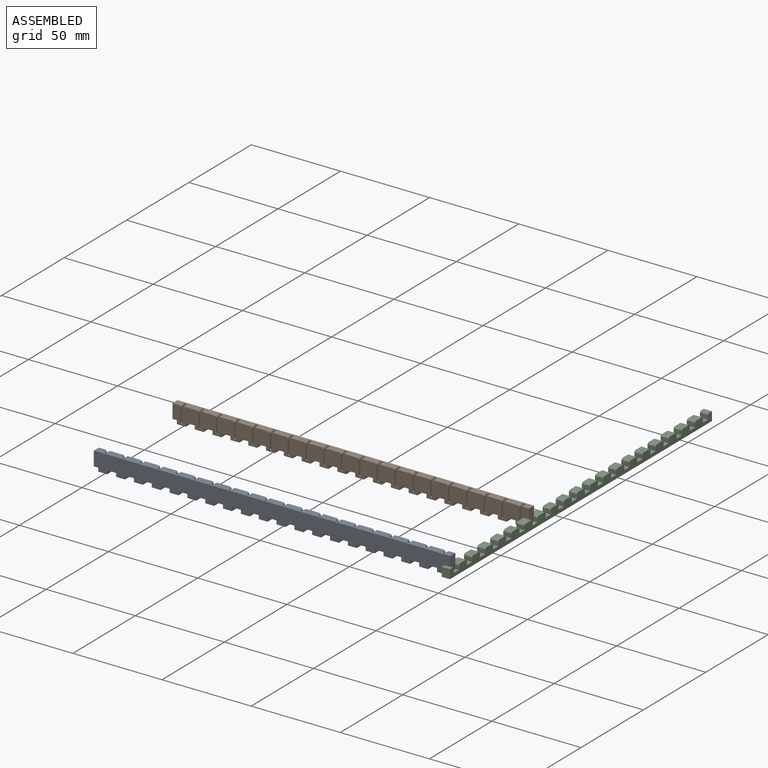
[diagram: assembled view]
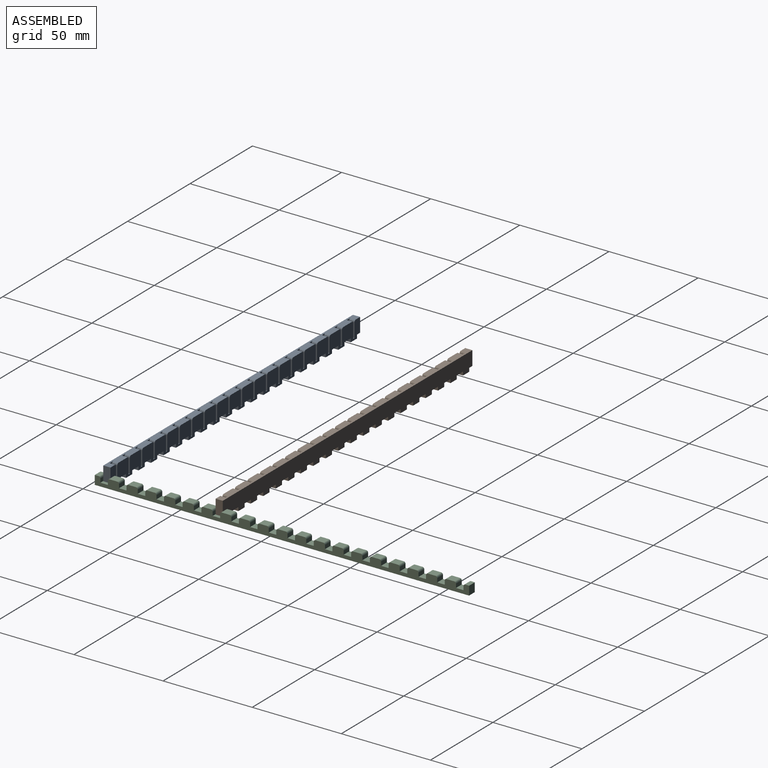
[diagram: assembled view, second angle]
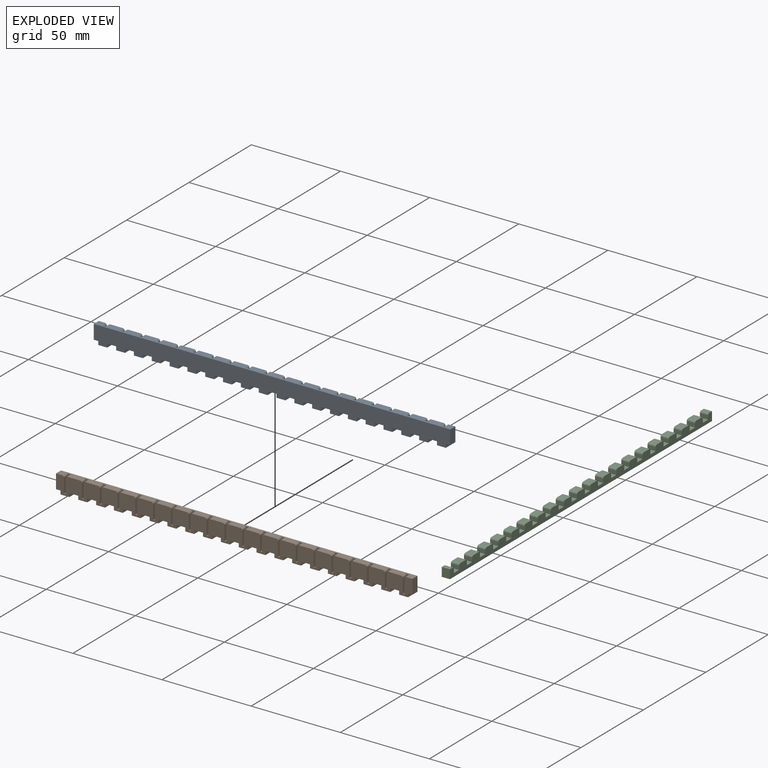
[diagram: exploded view]
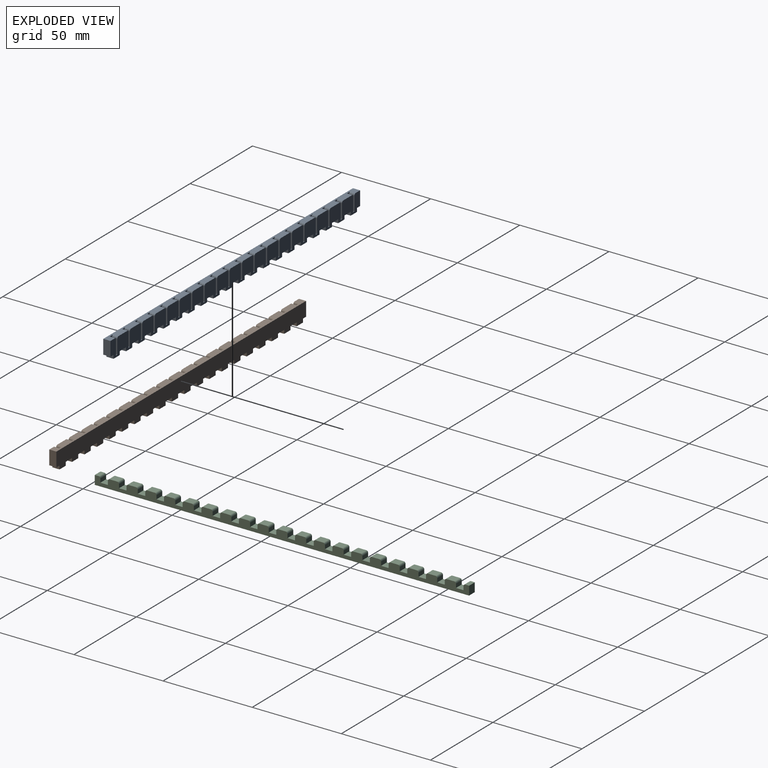
[diagram: exploded view, second angle]
ASSEMBLY  parts=3 mates=2
PART A: 206 faces, bbox 200x4x10 mm
  f0: plane 8x4mm, normal (1,0,0), area 32mm2, adj f6,f11,f12,f13
  f1: cylinder r=1mm len=3mm, axis (0,1,0), area 4.7mm2, adj f2,f6,f12,f14
  f2: plane 8x3mm, normal (-1,0,0), area 24mm2, adj f1,f3,f12,f14
  f3: plane 3x1mm, normal (0,0,1), area 3mm2, adj f2,f4,f12,f14
  f4: plane 8x3mm, normal (1,0,0), area 24mm2, adj f3,f5,f12,f14
  f5: cylinder r=1mm len=3mm, axis (0,1,0), area 4.7mm2, adj f4,f6,f12,f14
  f6: plane 200x4mm, normal (0,0,1), area 620mm2, adj f0,f1,f5,f12,f13,f14,f15,f19
  f7: plane 5x4mm, normal (0,0,-1), area 20mm2, adj f8,f12,f13,f23
  f8: plane 4x2mm, normal (-1,0,0), area 8mm2, adj f7,f9,f12,f13
  f9: plane 5x4mm, normal (0,0,-1), area 20mm2, adj f8,f10,f12,f13
  f10: plane 4x2mm, normal (1,0,0), area 8mm2, adj f9,f11,f12,f13
  f11: plane 4x2.5mm, normal (0,0,-1), area 10mm2, adj f0,f10,f12,f13
  f12: plane 200x10mm, normal (0,-1,0), area 1611.4mm2, adj f0,f1,f2,f3,f4,f5,f6,f7
  f13: plane 200x10mm, normal (0,1,0), area 1800mm2, adj f0,f6,f7,f8,f9,f10,f11,f20
  f14: plane 9x3mm, normal (0,-1,0), area 9.4mm2, adj f1,f2,f3,f4,f5,f6
  f15: cylinder r=1mm len=3mm, axis (0,1,0), area 4.7mm2, adj f6,f12,f16,f24
  f16: plane 8x3mm, normal (-1,0,0), area 24mm2, adj f12,f15,f17,f24
  f17: plane 3x1mm, normal (0,0,1), area 3mm2, adj f12,f16,f18,f24
  f18: plane 8x3mm, normal (1,0,0), area 24mm2, adj f12,f17,f19,f24
  f19: cylinder r=1mm len=3mm, axis (0,1,0), area 4.7mm2, adj f6,f12,f18,f24
  f20: plane 5x4mm, normal (0,0,-1), area 20mm2, adj f12,f13,f21,f33
  f21: plane 4x2mm, normal (-1,0,0), area 8mm2, adj f12,f13,f20,f22
  f22: plane 5x4mm, normal (0,0,-1), area 20mm2, adj f12,f13,f21,f23
  f23: plane 4x2mm, normal (1,0,0), area 8mm2, adj f7,f12,f13,f22
  f24: plane 9x3mm, normal (0,-1,0), area 9.4mm2, adj f6,f15,f16,f17,f18,f19
  f25: cylinder r=1mm len=3mm, axis (0,1,0), area 4.7mm2, adj f6,f12,f26,f34
  f26: plane 8x3mm, normal (-1,0,0), area 24mm2, adj f12,f25,f27,f34
  f27: plane 3x1mm, normal (0,0,1), area 3mm2, adj f12,f26,f28,f34
  f28: plane 8x3mm, normal (1,0,0), area 24mm2, adj f12,f27,f29,f34
  f29: cylinder r=1mm len=3mm, axis (0,1,0), area 4.7mm2, adj f6,f12,f28,f34
  f30: plane 5x4mm, normal (0,0,-1), area 20mm2, adj f12,f13,f31,f43
  f31: plane 4x2mm, normal (-1,0,0), area 8mm2, adj f12,f13,f30,f32
  f32: plane 5x4mm, normal (0,0,-1), area 20mm2, adj f12,f13,f31,f33
  f33: plane 4x2mm, normal (1,0,0), area 8mm2, adj f12,f13,f20,f32
  f34: plane 9x3mm, normal (0,-1,0), area 9.4mm2, adj f6,f25,f26,f27,f28,f29
  f35: cylinder r=1mm len=3mm, axis (0,1,0), area 4.7mm2, adj f6,f12,f36,f44
  f36: plane 8x3mm, normal (-1,0,0), area 24mm2, adj f12,f35,f37,f44
  f37: plane 3x1mm, normal (0,0,1), area 3mm2, adj f12,f36,f38,f44
  f38: plane 8x3mm, normal (1,0,0), area 24mm2, adj f12,f37,f39,f44
  f39: cylinder r=1mm len=3mm, axis (0,1,0), area 4.7mm2, adj f6,f12,f38,f44
  f40: plane 5x4mm, normal (0,0,-1), area 20mm2, adj f12,f13,f41,f53
  f41: plane 4x2mm, normal (-1,0,0), area 8mm2, adj f12,f13,f40,f42
  f42: plane 5x4mm, normal (0,0,-1), area 20mm2, adj f12,f13,f41,f43
  f43: plane 4x2mm, normal (1,0,0), area 8mm2, adj f12,f13,f30,f42
  f44: plane 9x3mm, normal (0,-1,0), area 9.4mm2, adj f6,f35,f36,f37,f38,f39
  f45: cylinder r=1mm len=3mm, axis (0,1,0), area 4.7mm2, adj f6,f12,f46,f54
  f46: plane 8x3mm, normal (-1,0,0), area 24mm2, adj f12,f45,f47,f54
  f47: plane 3x1mm, normal (0,0,1), area 3mm2, adj f12,f46,f48,f54
  f48: plane 8x3mm, normal (1,0,0), area 24mm2, adj f12,f47,f49,f54
  f49: cylinder r=1mm len=3mm, axis (0,1,0), area 4.7mm2, adj f6,f12,f48,f54
  f50: plane 5x4mm, normal (0,0,-1), area 20mm2, adj f12,f13,f51,f63
  f51: plane 4x2mm, normal (-1,0,0), area 8mm2, adj f12,f13,f50,f52
  f52: plane 5x4mm, normal (0,0,-1), area 20mm2, adj f12,f13,f51,f53
  f53: plane 4x2mm, normal (1,0,0), area 8mm2, adj f12,f13,f40,f52
  f54: plane 9x3mm, normal (0,-1,0), area 9.4mm2, adj f6,f45,f46,f47,f48,f49
  f55: cylinder r=1mm len=3mm, axis (0,1,0), area 4.7mm2, adj f6,f12,f56,f64
  f56: plane 8x3mm, normal (-1,0,0), area 24mm2, adj f12,f55,f57,f64
  f57: plane 3x1mm, normal (0,0,1), area 3mm2, adj f12,f56,f58,f64
  f58: plane 8x3mm, normal (1,0,0), area 24mm2, adj f12,f57,f59,f64
  f59: cylinder r=1mm len=3mm, axis (0,1,0), area 4.7mm2, adj f6,f12,f58,f64
  f60: plane 5x4mm, normal (0,0,-1), area 20mm2, adj f12,f13,f61,f73
  f61: plane 4x2mm, normal (-1,0,0), area 8mm2, adj f12,f13,f60,f62
  f62: plane 5x4mm, normal (0,0,-1), area 20mm2, adj f12,f13,f61,f63
  f63: plane 4x2mm, normal (1,0,0), area 8mm2, adj f12,f13,f50,f62
  f64: plane 9x3mm, normal (0,-1,0), area 9.4mm2, adj f6,f55,f56,f57,f58,f59
  f65: cylinder r=1mm len=3mm, axis (0,1,0), area 4.7mm2, adj f6,f12,f66,f74
  f66: plane 8x3mm, normal (-1,0,0), area 24mm2, adj f12,f65,f67,f74
  f67: plane 3x1mm, normal (0,0,1), area 3mm2, adj f12,f66,f68,f74
  f68: plane 8x3mm, normal (1,0,0), area 24mm2, adj f12,f67,f69,f74
  f69: cylinder r=1mm len=3mm, axis (0,1,0), area 4.7mm2, adj f6,f12,f68,f74
  f70: plane 5x4mm, normal (0,0,-1), area 20mm2, adj f12,f13,f71,f83
  f71: plane 4x2mm, normal (-1,0,0), area 8mm2, adj f12,f13,f70,f72
  f72: plane 5x4mm, normal (0,0,-1), area 20mm2, adj f12,f13,f71,f73
  f73: plane 4x2mm, normal (1,0,0), area 8mm2, adj f12,f13,f60,f72
  f74: plane 9x3mm, normal (0,-1,0), area 9.4mm2, adj f6,f65,f66,f67,f68,f69
  f75: cylinder r=1mm len=3mm, axis (0,1,0), area 4.7mm2, adj f6,f12,f76,f84
  f76: plane 8x3mm, normal (-1,0,0), area 24mm2, adj f12,f75,f77,f84
  f77: plane 3x1mm, normal (0,0,1), area 3mm2, adj f12,f76,f78,f84
  f78: plane 8x3mm, normal (1,0,0), area 24mm2, adj f12,f77,f79,f84
  f79: cylinder r=1mm len=3mm, axis (0,1,0), area 4.7mm2, adj f6,f12,f78,f84
  f80: plane 5x4mm, normal (0,0,-1), area 20mm2, adj f12,f13,f81,f93
  f81: plane 4x2mm, normal (-1,0,0), area 8mm2, adj f12,f13,f80,f82
  f82: plane 5x4mm, normal (0,0,-1), area 20mm2, adj f12,f13,f81,f83
  f83: plane 4x2mm, normal (1,0,0), area 8mm2, adj f12,f13,f70,f82
  f84: plane 9x3mm, normal (0,-1,0), area 9.4mm2, adj f6,f75,f76,f77,f78,f79
  f85: cylinder r=1mm len=3mm, axis (0,1,0), area 4.7mm2, adj f6,f12,f86,f94
  f86: plane 8x3mm, normal (-1,0,0), area 24mm2, adj f12,f85,f87,f94
  f87: plane 3x1mm, normal (0,0,1), area 3mm2, adj f12,f86,f88,f94
  f88: plane 8x3mm, normal (1,0,0), area 24mm2, adj f12,f87,f89,f94
  f89: cylinder r=1mm len=3mm, axis (0,1,0), area 4.7mm2, adj f6,f12,f88,f94
  f90: plane 5x4mm, normal (0,0,-1), area 20mm2, adj f12,f13,f91,f103
  f91: plane 4x2mm, normal (-1,0,0), area 8mm2, adj f12,f13,f90,f92
  f92: plane 5x4mm, normal (0,0,-1), area 20mm2, adj f12,f13,f91,f93
  f93: plane 4x2mm, normal (1,0,0), area 8mm2, adj f12,f13,f80,f92
  f94: plane 9x3mm, normal (0,-1,0), area 9.4mm2, adj f6,f85,f86,f87,f88,f89
  f95: cylinder r=1mm len=3mm, axis (0,1,0), area 4.7mm2, adj f6,f12,f96,f104
  f96: plane 8x3mm, normal (-1,0,0), area 24mm2, adj f12,f95,f97,f104
  f97: plane 3x1mm, normal (0,0,1), area 3mm2, adj f12,f96,f98,f104
  f98: plane 8x3mm, normal (1,0,0), area 24mm2, adj f12,f97,f99,f104
  f99: cylinder r=1mm len=3mm, axis (0,1,0), area 4.7mm2, adj f6,f12,f98,f104
  f100: plane 5x4mm, normal (0,0,-1), area 20mm2, adj f12,f13,f101,f113
  f101: plane 4x2mm, normal (-1,0,0), area 8mm2, adj f12,f13,f100,f102
  f102: plane 5x4mm, normal (0,0,-1), area 20mm2, adj f12,f13,f101,f103
  f103: plane 4x2mm, normal (1,0,0), area 8mm2, adj f12,f13,f90,f102
  f104: plane 9x3mm, normal (0,-1,0), area 9.4mm2, adj f6,f95,f96,f97,f98,f99
  f105: cylinder r=1mm len=3mm, axis (0,1,0), area 4.7mm2, adj f6,f12,f106,f114
  f106: plane 8x3mm, normal (-1,0,0), area 24mm2, adj f12,f105,f107,f114
  f107: plane 3x1mm, normal (0,0,1), area 3mm2, adj f12,f106,f108,f114
  f108: plane 8x3mm, normal (1,0,0), area 24mm2, adj f12,f107,f109,f114
  f109: cylinder r=1mm len=3mm, axis (0,1,0), area 4.7mm2, adj f6,f12,f108,f114
  f110: plane 5x4mm, normal (0,0,-1), area 20mm2, adj f12,f13,f111,f123
  f111: plane 4x2mm, normal (-1,0,0), area 8mm2, adj f12,f13,f110,f112
  f112: plane 5x4mm, normal (0,0,-1), area 20mm2, adj f12,f13,f111,f113
  f113: plane 4x2mm, normal (1,0,0), area 8mm2, adj f12,f13,f100,f112
  f114: plane 9x3mm, normal (0,-1,0), area 9.4mm2, adj f6,f105,f106,f107,f108,f109
  f115: cylinder r=1mm len=3mm, axis (0,1,0), area 4.7mm2, adj f6,f12,f116,f124
  f116: plane 8x3mm, normal (-1,0,0), area 24mm2, adj f12,f115,f117,f124
  f117: plane 3x1mm, normal (0,0,1), area 3mm2, adj f12,f116,f118,f124
  f118: plane 8x3mm, normal (1,0,0), area 24mm2, adj f12,f117,f119,f124
  f119: cylinder r=1mm len=3mm, axis (0,1,0), area 4.7mm2, adj f6,f12,f118,f124
  f120: plane 5x4mm, normal (0,0,-1), area 20mm2, adj f12,f13,f121,f133
  f121: plane 4x2mm, normal (-1,0,0), area 8mm2, adj f12,f13,f120,f122
  f122: plane 5x4mm, normal (0,0,-1), area 20mm2, adj f12,f13,f121,f123
  f123: plane 4x2mm, normal (1,0,0), area 8mm2, adj f12,f13,f110,f122
  f124: plane 9x3mm, normal (0,-1,0), area 9.4mm2, adj f6,f115,f116,f117,f118,f119
  f125: cylinder r=1mm len=3mm, axis (0,1,0), area 4.7mm2, adj f6,f12,f126,f134
  f126: plane 8x3mm, normal (-1,0,0), area 24mm2, adj f12,f125,f127,f134
  f127: plane 3x1mm, normal (0,0,1), area 3mm2, adj f12,f126,f128,f134
  f128: plane 8x3mm, normal (1,0,0), area 24mm2, adj f12,f127,f129,f134
  f129: cylinder r=1mm len=3mm, axis (0,1,0), area 4.7mm2, adj f6,f12,f128,f134
  f130: plane 5x4mm, normal (0,0,-1), area 20mm2, adj f12,f13,f131,f143
  f131: plane 4x2mm, normal (-1,0,0), area 8mm2, adj f12,f13,f130,f132
  f132: plane 5x4mm, normal (0,0,-1), area 20mm2, adj f12,f13,f131,f133
  f133: plane 4x2mm, normal (1,0,0), area 8mm2, adj f12,f13,f120,f132
  f134: plane 9x3mm, normal (0,-1,0), area 9.4mm2, adj f6,f125,f126,f127,f128,f129
  f135: cylinder r=1mm len=3mm, axis (0,1,0), area 4.7mm2, adj f6,f12,f136,f144
  f136: plane 8x3mm, normal (-1,0,0), area 24mm2, adj f12,f135,f137,f144
  f137: plane 3x1mm, normal (0,0,1), area 3mm2, adj f12,f136,f138,f144
  f138: plane 8x3mm, normal (1,0,0), area 24mm2, adj f12,f137,f139,f144
  f139: cylinder r=1mm len=3mm, axis (0,1,0), area 4.7mm2, adj f6,f12,f138,f144
  f140: plane 5x4mm, normal (0,0,-1), area 20mm2, adj f12,f13,f141,f153
  f141: plane 4x2mm, normal (-1,0,0), area 8mm2, adj f12,f13,f140,f142
  f142: plane 5x4mm, normal (0,0,-1), area 20mm2, adj f12,f13,f141,f143
  f143: plane 4x2mm, normal (1,0,0), area 8mm2, adj f12,f13,f130,f142
  f144: plane 9x3mm, normal (0,-1,0), area 9.4mm2, adj f6,f135,f136,f137,f138,f139
  f145: cylinder r=1mm len=3mm, axis (0,1,0), area 4.7mm2, adj f6,f12,f146,f154
  f146: plane 8x3mm, normal (-1,0,0), area 24mm2, adj f12,f145,f147,f154
  f147: plane 3x1mm, normal (0,0,1), area 3mm2, adj f12,f146,f148,f154
  f148: plane 8x3mm, normal (1,0,0), area 24mm2, adj f12,f147,f149,f154
  f149: cylinder r=1mm len=3mm, axis (0,1,0), area 4.7mm2, adj f6,f12,f148,f154
  f150: plane 5x4mm, normal (0,0,-1), area 20mm2, adj f12,f13,f151,f163
  f151: plane 4x2mm, normal (-1,0,0), area 8mm2, adj f12,f13,f150,f152
  f152: plane 5x4mm, normal (0,0,-1), area 20mm2, adj f12,f13,f151,f153
  f153: plane 4x2mm, normal (1,0,0), area 8mm2, adj f12,f13,f140,f152
  f154: plane 9x3mm, normal (0,-1,0), area 9.4mm2, adj f6,f145,f146,f147,f148,f149
  f155: cylinder r=1mm len=3mm, axis (0,1,0), area 4.7mm2, adj f6,f12,f156,f164
  f156: plane 8x3mm, normal (-1,0,0), area 24mm2, adj f12,f155,f157,f164
  f157: plane 3x1mm, normal (0,0,1), area 3mm2, adj f12,f156,f158,f164
  f158: plane 8x3mm, normal (1,0,0), area 24mm2, adj f12,f157,f159,f164
  f159: cylinder r=1mm len=3mm, axis (0,1,0), area 4.7mm2, adj f6,f12,f158,f164
  f160: plane 5x4mm, normal (0,0,-1), area 20mm2, adj f12,f13,f161,f173
  f161: plane 4x2mm, normal (-1,0,0), area 8mm2, adj f12,f13,f160,f162
  f162: plane 5x4mm, normal (0,0,-1), area 20mm2, adj f12,f13,f161,f163
  f163: plane 4x2mm, normal (1,0,0), area 8mm2, adj f12,f13,f150,f162
  f164: plane 9x3mm, normal (0,-1,0), area 9.4mm2, adj f6,f155,f156,f157,f158,f159
  f165: cylinder r=1mm len=3mm, axis (0,1,0), area 4.7mm2, adj f6,f12,f166,f174
  f166: plane 8x3mm, normal (-1,0,0), area 24mm2, adj f12,f165,f167,f174
  f167: plane 3x1mm, normal (0,0,1), area 3mm2, adj f12,f166,f168,f174
  f168: plane 8x3mm, normal (1,0,0), area 24mm2, adj f12,f167,f169,f174
  f169: cylinder r=1mm len=3mm, axis (0,1,0), area 4.7mm2, adj f6,f12,f168,f174
  f170: plane 5x4mm, normal (0,0,-1), area 20mm2, adj f12,f13,f171,f183
  f171: plane 4x2mm, normal (-1,0,0), area 8mm2, adj f12,f13,f170,f172
  f172: plane 5x4mm, normal (0,0,-1), area 20mm2, adj f12,f13,f171,f173
  f173: plane 4x2mm, normal (1,0,0), area 8mm2, adj f12,f13,f160,f172
  f174: plane 9x3mm, normal (0,-1,0), area 9.4mm2, adj f6,f165,f166,f167,f168,f169
  f175: cylinder r=1mm len=3mm, axis (0,1,0), area 4.7mm2, adj f6,f12,f176,f184
  f176: plane 8x3mm, normal (-1,0,0), area 24mm2, adj f12,f175,f177,f184
  f177: plane 3x1mm, normal (0,0,1), area 3mm2, adj f12,f176,f178,f184
  f178: plane 8x3mm, normal (1,0,0), area 24mm2, adj f12,f177,f179,f184
  f179: cylinder r=1mm len=3mm, axis (0,1,0), area 4.7mm2, adj f6,f12,f178,f184
  f180: plane 5x4mm, normal (0,0,-1), area 20mm2, adj f12,f13,f181,f193
  f181: plane 4x2mm, normal (-1,0,0), area 8mm2, adj f12,f13,f180,f182
  f182: plane 5x4mm, normal (0,0,-1), area 20mm2, adj f12,f13,f181,f183
  f183: plane 4x2mm, normal (1,0,0), area 8mm2, adj f12,f13,f170,f182
  f184: plane 9x3mm, normal (0,-1,0), area 9.4mm2, adj f6,f175,f176,f177,f178,f179
  f185: cylinder r=1mm len=3mm, axis (0,1,0), area 4.7mm2, adj f6,f12,f186,f194
  f186: plane 8x3mm, normal (-1,0,0), area 24mm2, adj f12,f185,f187,f194
  f187: plane 3x1mm, normal (0,0,1), area 3mm2, adj f12,f186,f188,f194
  f188: plane 8x3mm, normal (1,0,0), area 24mm2, adj f12,f187,f189,f194
  f189: cylinder r=1mm len=3mm, axis (0,1,0), area 4.7mm2, adj f6,f12,f188,f194
  f190: plane 5x4mm, normal (0,0,-1), area 20mm2, adj f12,f13,f191,f204
  f191: plane 4x2mm, normal (-1,0,0), area 8mm2, adj f12,f13,f190,f192
  f192: plane 5x4mm, normal (0,0,-1), area 20mm2, adj f12,f13,f191,f193
  f193: plane 4x2mm, normal (1,0,0), area 8mm2, adj f12,f13,f180,f192
  f194: plane 9x3mm, normal (0,-1,0), area 9.4mm2, adj f6,f185,f186,f187,f188,f189
  f195: cylinder r=1mm len=3mm, axis (0,1,0), area 4.7mm2, adj f6,f12,f196,f205
  f196: plane 8x3mm, normal (-1,0,0), area 24mm2, adj f12,f195,f197,f205
  f197: plane 3x1mm, normal (0,0,1), area 3mm2, adj f12,f196,f198,f205
  f198: plane 8x3mm, normal (1,0,0), area 24mm2, adj f12,f197,f199,f205
  f199: cylinder r=1mm len=3mm, axis (0,1,0), area 4.7mm2, adj f6,f12,f198,f205
  f200: plane 8x4mm, normal (-1,0,0), area 32mm2, adj f6,f12,f13,f201
  f201: plane 4x2.5mm, normal (0,0,-1), area 10mm2, adj f12,f13,f200,f202
  f202: plane 4x2mm, normal (-1,0,0), area 8mm2, adj f12,f13,f201,f203
  f203: plane 5x4mm, normal (0,0,-1), area 20mm2, adj f12,f13,f202,f204
  f204: plane 4x2mm, normal (1,0,0), area 8mm2, adj f12,f13,f190,f203
  f205: plane 9x3mm, normal (0,-1,0), area 9.4mm2, adj f6,f195,f196,f197,f198,f199
PART B: same geometry as A
PART C: 126 faces, bbox 4.6x210x5 mm
  f0: plane 4.6x2.15mm, normal (0,0,1), area 9.9mm2, adj f1,f8,f9,f10
  f1: plane 5x4.6mm, normal (0,-1,0), area 23mm2, adj f0,f2,f9,f10
  f2: plane 210x4.6mm, normal (0,0,-1), area 966mm2, adj f1,f9,f10,f119
  f3: plane 4.6x4.3mm, normal (0,0,1), area 19.8mm2, adj f4,f9,f10,f16
  f4: cylinder r=1mm len=4.6mm, axis (-1,0,0), area 7.2mm2, adj f3,f5,f9,f10
  f5: plane 4.6x2.1mm, normal (0,-1,0), area 9.7mm2, adj f4,f6,f9,f10
  f6: plane 4.6x4.2mm, normal (0,0,1), area 19.3mm2, adj f5,f7,f9,f10
  f7: plane 4.6x2.1mm, normal (0,1,0), area 9.7mm2, adj f6,f8,f9,f10
  f8: cylinder r=1mm len=4.6mm, axis (-1,0,0), area 7.2mm2, adj f0,f7,f9,f10
  f9: plane 210x5mm, normal (1,0,0), area 781mm2, adj f0,f1,f2,f3,f4,f5,f6,f7
  f10: plane 210x5mm, normal (-1,0,0), area 781mm2, adj f0,f1,f2,f3,f4,f5,f6,f7
  f11: plane 4.6x4.3mm, normal (0,0,1), area 19.8mm2, adj f9,f10,f12,f22
  f12: cylinder r=1mm len=4.6mm, axis (-1,0,0), area 7.2mm2, adj f9,f10,f11,f13
  f13: plane 4.6x2.1mm, normal (0,-1,0), area 9.7mm2, adj f9,f10,f12,f14
  f14: plane 4.6x4.2mm, normal (0,0,1), area 19.3mm2, adj f9,f10,f13,f15
  f15: plane 4.6x2.1mm, normal (0,1,0), area 9.7mm2, adj f9,f10,f14,f16
  f16: cylinder r=1mm len=4.6mm, axis (-1,0,0), area 7.2mm2, adj f3,f9,f10,f15
  f17: plane 4.6x4.3mm, normal (0,0,1), area 19.8mm2, adj f9,f10,f18,f28
  f18: cylinder r=1mm len=4.6mm, axis (-1,0,0), area 7.2mm2, adj f9,f10,f17,f19
  f19: plane 4.6x2.1mm, normal (0,-1,0), area 9.7mm2, adj f9,f10,f18,f20
  f20: plane 4.6x4.2mm, normal (0,0,1), area 19.3mm2, adj f9,f10,f19,f21
  f21: plane 4.6x2.1mm, normal (0,1,0), area 9.7mm2, adj f9,f10,f20,f22
  f22: cylinder r=1mm len=4.6mm, axis (-1,0,0), area 7.2mm2, adj f9,f10,f11,f21
  f23: plane 4.6x4.3mm, normal (0,0,1), area 19.8mm2, adj f9,f10,f24,f34
  f24: cylinder r=1mm len=4.6mm, axis (-1,0,0), area 7.2mm2, adj f9,f10,f23,f25
  f25: plane 4.6x2.1mm, normal (0,-1,0), area 9.7mm2, adj f9,f10,f24,f26
  f26: plane 4.6x4.2mm, normal (0,0,1), area 19.3mm2, adj f9,f10,f25,f27
  f27: plane 4.6x2.1mm, normal (0,1,0), area 9.7mm2, adj f9,f10,f26,f28
  f28: cylinder r=1mm len=4.6mm, axis (-1,0,0), area 7.2mm2, adj f9,f10,f17,f27
  f29: plane 4.6x4.3mm, normal (0,0,1), area 19.8mm2, adj f9,f10,f30,f40
  f30: cylinder r=1mm len=4.6mm, axis (-1,0,0), area 7.2mm2, adj f9,f10,f29,f31
  f31: plane 4.6x2.1mm, normal (0,-1,0), area 9.7mm2, adj f9,f10,f30,f32
  f32: plane 4.6x4.2mm, normal (0,0,1), area 19.3mm2, adj f9,f10,f31,f33
  f33: plane 4.6x2.1mm, normal (0,1,0), area 9.7mm2, adj f9,f10,f32,f34
  f34: cylinder r=1mm len=4.6mm, axis (-1,0,0), area 7.2mm2, adj f9,f10,f23,f33
  f35: plane 4.6x4.3mm, normal (0,0,1), area 19.8mm2, adj f9,f10,f36,f46
  f36: cylinder r=1mm len=4.6mm, axis (-1,0,0), area 7.2mm2, adj f9,f10,f35,f37
  f37: plane 4.6x2.1mm, normal (0,-1,0), area 9.7mm2, adj f9,f10,f36,f38
  f38: plane 4.6x4.2mm, normal (0,0,1), area 19.3mm2, adj f9,f10,f37,f39
  f39: plane 4.6x2.1mm, normal (0,1,0), area 9.7mm2, adj f9,f10,f38,f40
  f40: cylinder r=1mm len=4.6mm, axis (-1,0,0), area 7.2mm2, adj f9,f10,f29,f39
  f41: plane 4.6x4.3mm, normal (0,0,1), area 19.8mm2, adj f9,f10,f42,f52
  f42: cylinder r=1mm len=4.6mm, axis (-1,0,0), area 7.2mm2, adj f9,f10,f41,f43
  f43: plane 4.6x2.1mm, normal (0,-1,0), area 9.7mm2, adj f9,f10,f42,f44
  f44: plane 4.6x4.2mm, normal (0,0,1), area 19.3mm2, adj f9,f10,f43,f45
  f45: plane 4.6x2.1mm, normal (0,1,0), area 9.7mm2, adj f9,f10,f44,f46
  f46: cylinder r=1mm len=4.6mm, axis (-1,0,0), area 7.2mm2, adj f9,f10,f35,f45
  f47: plane 4.6x4.3mm, normal (0,0,1), area 19.8mm2, adj f9,f10,f48,f58
  f48: cylinder r=1mm len=4.6mm, axis (-1,0,0), area 7.2mm2, adj f9,f10,f47,f49
  f49: plane 4.6x2.1mm, normal (0,-1,0), area 9.7mm2, adj f9,f10,f48,f50
  f50: plane 4.6x4.2mm, normal (0,0,1), area 19.3mm2, adj f9,f10,f49,f51
  f51: plane 4.6x2.1mm, normal (0,1,0), area 9.7mm2, adj f9,f10,f50,f52
  f52: cylinder r=1mm len=4.6mm, axis (-1,0,0), area 7.2mm2, adj f9,f10,f41,f51
  f53: plane 4.6x4.3mm, normal (0,0,1), area 19.8mm2, adj f9,f10,f54,f64
  f54: cylinder r=1mm len=4.6mm, axis (-1,0,0), area 7.2mm2, adj f9,f10,f53,f55
  f55: plane 4.6x2.1mm, normal (0,-1,0), area 9.7mm2, adj f9,f10,f54,f56
  f56: plane 4.6x4.2mm, normal (0,0,1), area 19.3mm2, adj f9,f10,f55,f57
  f57: plane 4.6x2.1mm, normal (0,1,0), area 9.7mm2, adj f9,f10,f56,f58
  f58: cylinder r=1mm len=4.6mm, axis (-1,0,0), area 7.2mm2, adj f9,f10,f47,f57
  f59: plane 4.6x4.3mm, normal (0,0,1), area 19.8mm2, adj f9,f10,f60,f70
  f60: cylinder r=1mm len=4.6mm, axis (-1,0,0), area 7.2mm2, adj f9,f10,f59,f61
  f61: plane 4.6x2.1mm, normal (0,-1,0), area 9.7mm2, adj f9,f10,f60,f62
  f62: plane 4.6x4.2mm, normal (0,0,1), area 19.3mm2, adj f9,f10,f61,f63
  f63: plane 4.6x2.1mm, normal (0,1,0), area 9.7mm2, adj f9,f10,f62,f64
  f64: cylinder r=1mm len=4.6mm, axis (-1,0,0), area 7.2mm2, adj f9,f10,f53,f63
  f65: plane 4.6x4.3mm, normal (0,0,1), area 19.8mm2, adj f9,f10,f66,f76
  f66: cylinder r=1mm len=4.6mm, axis (-1,0,0), area 7.2mm2, adj f9,f10,f65,f67
  f67: plane 4.6x2.1mm, normal (0,-1,0), area 9.7mm2, adj f9,f10,f66,f68
  f68: plane 4.6x4.2mm, normal (0,0,1), area 19.3mm2, adj f9,f10,f67,f69
  f69: plane 4.6x2.1mm, normal (0,1,0), area 9.7mm2, adj f9,f10,f68,f70
  f70: cylinder r=1mm len=4.6mm, axis (-1,0,0), area 7.2mm2, adj f9,f10,f59,f69
  f71: plane 4.6x4.3mm, normal (0,0,1), area 19.8mm2, adj f9,f10,f72,f82
  f72: cylinder r=1mm len=4.6mm, axis (-1,0,0), area 7.2mm2, adj f9,f10,f71,f73
  f73: plane 4.6x2.1mm, normal (0,-1,0), area 9.7mm2, adj f9,f10,f72,f74
  f74: plane 4.6x4.2mm, normal (0,0,1), area 19.3mm2, adj f9,f10,f73,f75
  f75: plane 4.6x2.1mm, normal (0,1,0), area 9.7mm2, adj f9,f10,f74,f76
  f76: cylinder r=1mm len=4.6mm, axis (-1,0,0), area 7.2mm2, adj f9,f10,f65,f75
  f77: plane 4.6x4.3mm, normal (0,0,1), area 19.8mm2, adj f9,f10,f78,f88
  f78: cylinder r=1mm len=4.6mm, axis (-1,0,0), area 7.2mm2, adj f9,f10,f77,f79
  f79: plane 4.6x2.1mm, normal (0,-1,0), area 9.7mm2, adj f9,f10,f78,f80
  f80: plane 4.6x4.2mm, normal (0,0,1), area 19.3mm2, adj f9,f10,f79,f81
  f81: plane 4.6x2.1mm, normal (0,1,0), area 9.7mm2, adj f9,f10,f80,f82
  f82: cylinder r=1mm len=4.6mm, axis (-1,0,0), area 7.2mm2, adj f9,f10,f71,f81
  f83: plane 4.6x4.3mm, normal (0,0,1), area 19.8mm2, adj f9,f10,f84,f94
  f84: cylinder r=1mm len=4.6mm, axis (-1,0,0), area 7.2mm2, adj f9,f10,f83,f85
  f85: plane 4.6x2.1mm, normal (0,-1,0), area 9.7mm2, adj f9,f10,f84,f86
  f86: plane 4.6x4.2mm, normal (0,0,1), area 19.3mm2, adj f9,f10,f85,f87
  f87: plane 4.6x2.1mm, normal (0,1,0), area 9.7mm2, adj f9,f10,f86,f88
  f88: cylinder r=1mm len=4.6mm, axis (-1,0,0), area 7.2mm2, adj f9,f10,f77,f87
  f89: plane 4.6x4.3mm, normal (0,0,1), area 19.8mm2, adj f9,f10,f90,f100
  f90: cylinder r=1mm len=4.6mm, axis (-1,0,0), area 7.2mm2, adj f9,f10,f89,f91
  f91: plane 4.6x2.1mm, normal (0,-1,0), area 9.7mm2, adj f9,f10,f90,f92
  f92: plane 4.6x4.2mm, normal (0,0,1), area 19.3mm2, adj f9,f10,f91,f93
  f93: plane 4.6x2.1mm, normal (0,1,0), area 9.7mm2, adj f9,f10,f92,f94
  f94: cylinder r=1mm len=4.6mm, axis (-1,0,0), area 7.2mm2, adj f9,f10,f83,f93
  f95: plane 4.6x4.3mm, normal (0,0,1), area 19.8mm2, adj f9,f10,f96,f106
  f96: cylinder r=1mm len=4.6mm, axis (-1,0,0), area 7.2mm2, adj f9,f10,f95,f97
  f97: plane 4.6x2.1mm, normal (0,-1,0), area 9.7mm2, adj f9,f10,f96,f98
  f98: plane 4.6x4.2mm, normal (0,0,1), area 19.3mm2, adj f9,f10,f97,f99
  f99: plane 4.6x2.1mm, normal (0,1,0), area 9.7mm2, adj f9,f10,f98,f100
  f100: cylinder r=1mm len=4.6mm, axis (-1,0,0), area 7.2mm2, adj f9,f10,f89,f99
  f101: plane 4.6x4.3mm, normal (0,0,1), area 19.8mm2, adj f9,f10,f102,f112
  f102: cylinder r=1mm len=4.6mm, axis (-1,0,0), area 7.2mm2, adj f9,f10,f101,f103
  f103: plane 4.6x2.1mm, normal (0,-1,0), area 9.7mm2, adj f9,f10,f102,f104
  f104: plane 4.6x4.2mm, normal (0,0,1), area 19.3mm2, adj f9,f10,f103,f105
  f105: plane 4.6x2.1mm, normal (0,1,0), area 9.7mm2, adj f9,f10,f104,f106
  f106: cylinder r=1mm len=4.6mm, axis (-1,0,0), area 7.2mm2, adj f9,f10,f95,f105
  f107: plane 4.6x4.3mm, normal (0,0,1), area 19.8mm2, adj f9,f10,f108,f118
  f108: cylinder r=1mm len=4.6mm, axis (-1,0,0), area 7.2mm2, adj f9,f10,f107,f109
  f109: plane 4.6x2.1mm, normal (0,-1,0), area 9.7mm2, adj f9,f10,f108,f110
  f110: plane 4.6x4.2mm, normal (0,0,1), area 19.3mm2, adj f9,f10,f109,f111
  f111: plane 4.6x2.1mm, normal (0,1,0), area 9.7mm2, adj f9,f10,f110,f112
  f112: cylinder r=1mm len=4.6mm, axis (-1,0,0), area 7.2mm2, adj f9,f10,f101,f111
  f113: plane 4.6x4.3mm, normal (0,0,1), area 19.8mm2, adj f9,f10,f114,f125
  f114: cylinder r=1mm len=4.6mm, axis (-1,0,0), area 7.2mm2, adj f9,f10,f113,f115
  f115: plane 4.6x2.1mm, normal (0,-1,0), area 9.7mm2, adj f9,f10,f114,f116
  f116: plane 4.6x4.2mm, normal (0,0,1), area 19.3mm2, adj f9,f10,f115,f117
  f117: plane 4.6x2.1mm, normal (0,1,0), area 9.7mm2, adj f9,f10,f116,f118
  f118: cylinder r=1mm len=4.6mm, axis (-1,0,0), area 7.2mm2, adj f9,f10,f107,f117
  f119: plane 5x4.6mm, normal (0,1,0), area 23mm2, adj f2,f9,f10,f120
  f120: plane 4.6x2.15mm, normal (0,0,1), area 9.9mm2, adj f9,f10,f119,f121
  f121: cylinder r=1mm len=4.6mm, axis (-1,0,0), area 7.2mm2, adj f9,f10,f120,f122
  f122: plane 4.6x2.1mm, normal (0,-1,0), area 9.7mm2, adj f9,f10,f121,f123
  f123: plane 4.6x4.2mm, normal (0,0,1), area 19.3mm2, adj f9,f10,f122,f124
  f124: plane 4.6x2.1mm, normal (0,1,0), area 9.7mm2, adj f9,f10,f123,f125
  f125: cylinder r=1mm len=4.6mm, axis (-1,0,0), area 7.2mm2, adj f9,f10,f113,f124
PLACE A rot(axis=(0,0,1),180deg) t=(-195.88,-88.16,1.32)mm
PLACE B t=(-5.88,-23.16,1.32)mm
PLACE C t=(-6.08,-86.26,1.42)mm
MATE fastened A.f201 <-> C.f6  axis (0,0,1) through (-3.38,-85.16,3.32)mm
MATE fastened C.f43 <-> B.f13  axis (0,1,0) through (-3.38,-22.16,3.32)mm
